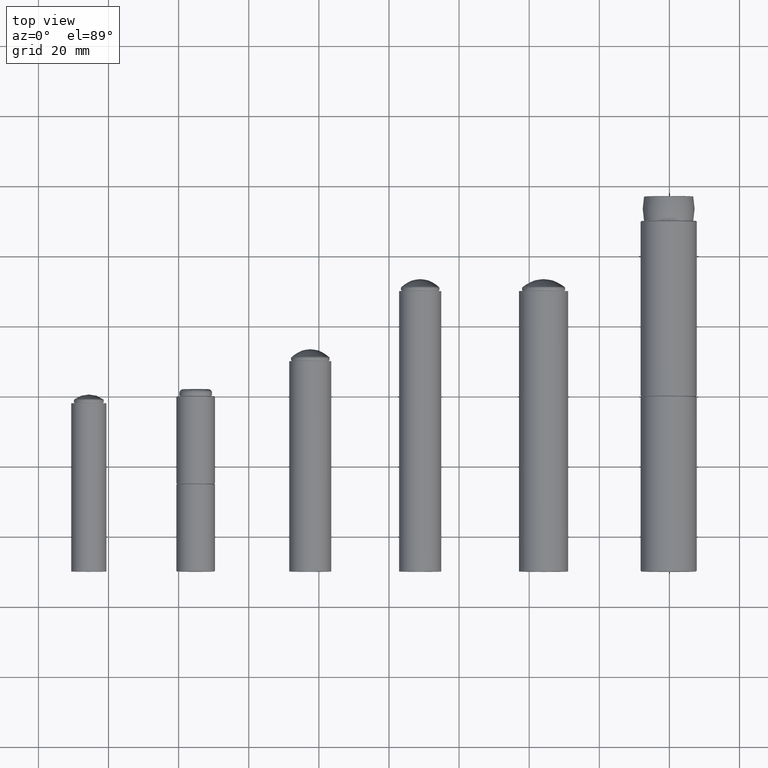
[diagram: clean part render]
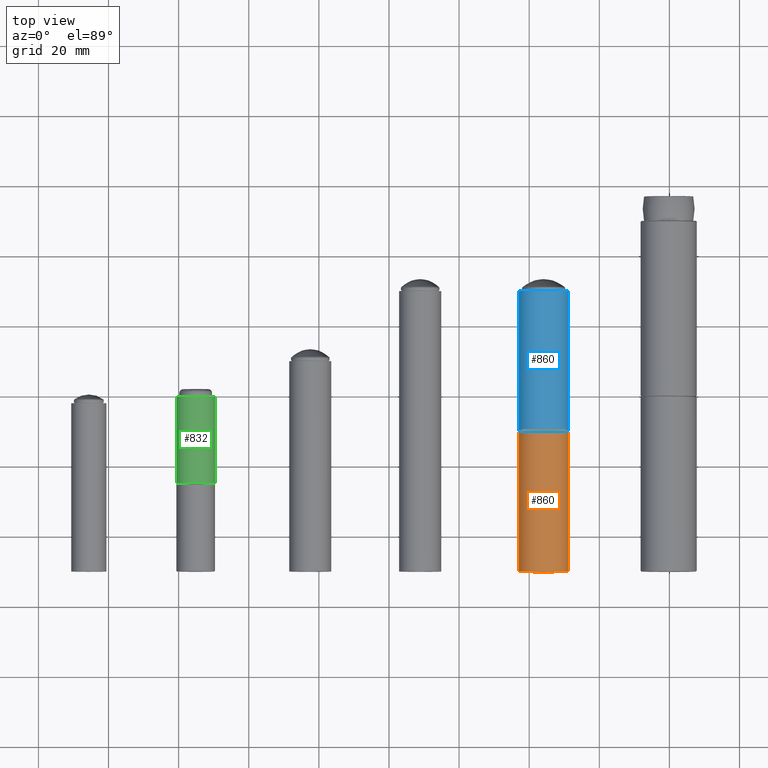
[diagram: same view with three faces highlighted in distinct colors, each labeled with its STEP entity id]
A machine part, top view with three faces highlighted in distinct colors.
Their STEP definitions:

[orange] entity #860 — the highlighted cylindrical surface (bore or boss wall) has radius 7 mm, axis along (-0, 1, 0).
#242=FACE_BOUND('',#417,.T.);
#307=FACE_OUTER_BOUND('',#416,.T.);
#416=EDGE_LOOP('',(#742));
#417=EDGE_LOOP('',(#743));
#501=CIRCLE('',#1012,7.);
#502=CIRCLE('',#1013,7.);
#567=VERTEX_POINT('',#1590);
#568=VERTEX_POINT('',#1592);
#633=EDGE_CURVE('',#567,#567,#501,.T.);
#634=EDGE_CURVE('',#568,#568,#502,.T.);
#742=ORIENTED_EDGE('',*,*,#633,.F.);
#743=ORIENTED_EDGE('',*,*,#634,.F.);
#807=CYLINDRICAL_SURFACE('',#1011,7.);
#860=ADVANCED_FACE('',(#307,#242),#807,.T.);
#1011=AXIS2_PLACEMENT_3D('',#1589,#1305,#1306);
#1012=AXIS2_PLACEMENT_3D('',#1591,#1307,#1308);
#1013=AXIS2_PLACEMENT_3D('',#1593,#1309,#1310);
#1305=DIRECTION('center_axis',(0.,0.,1.));
#1306=DIRECTION('ref_axis',(-1.,0.,0.));
#1307=DIRECTION('center_axis',(0.,0.,1.));
#1308=DIRECTION('ref_axis',(-1.,0.,0.));
#1309=DIRECTION('center_axis',(0.,0.,-1.));
#1310=DIRECTION('ref_axis',(-1.,0.,0.));
#1589=CARTESIAN_POINT('Origin',(0.,0.,0.));
#1590=CARTESIAN_POINT('',(7.,8.57252759403147E-16,40.));
#1591=CARTESIAN_POINT('Origin',(0.,0.,40.));
#1592=CARTESIAN_POINT('',(7.,8.57252759403147E-16,0.));
#1593=CARTESIAN_POINT('Origin',(0.,0.,0.));

[blue] entity #860 — the highlighted cylindrical surface (bore or boss wall) has radius 7 mm, axis along (-0, 1, 0).
#242=FACE_BOUND('',#417,.T.);
#307=FACE_OUTER_BOUND('',#416,.T.);
#416=EDGE_LOOP('',(#742));
#417=EDGE_LOOP('',(#743));
#501=CIRCLE('',#1012,7.);
#502=CIRCLE('',#1013,7.);
#567=VERTEX_POINT('',#1590);
#568=VERTEX_POINT('',#1592);
#633=EDGE_CURVE('',#567,#567,#501,.T.);
#634=EDGE_CURVE('',#568,#568,#502,.T.);
#742=ORIENTED_EDGE('',*,*,#633,.F.);
#743=ORIENTED_EDGE('',*,*,#634,.F.);
#807=CYLINDRICAL_SURFACE('',#1011,7.);
#860=ADVANCED_FACE('',(#307,#242),#807,.T.);
#1011=AXIS2_PLACEMENT_3D('',#1589,#1305,#1306);
#1012=AXIS2_PLACEMENT_3D('',#1591,#1307,#1308);
#1013=AXIS2_PLACEMENT_3D('',#1593,#1309,#1310);
#1305=DIRECTION('center_axis',(0.,0.,1.));
#1306=DIRECTION('ref_axis',(-1.,0.,0.));
#1307=DIRECTION('center_axis',(0.,0.,1.));
#1308=DIRECTION('ref_axis',(-1.,0.,0.));
#1309=DIRECTION('center_axis',(0.,0.,-1.));
#1310=DIRECTION('ref_axis',(-1.,0.,0.));
#1589=CARTESIAN_POINT('Origin',(0.,0.,0.));
#1590=CARTESIAN_POINT('',(7.,8.57252759403147E-16,40.));
#1591=CARTESIAN_POINT('Origin',(0.,0.,40.));
#1592=CARTESIAN_POINT('',(7.,8.57252759403147E-16,0.));
#1593=CARTESIAN_POINT('Origin',(0.,0.,0.));

[green] entity #832 — the highlighted cylindrical surface (bore or boss wall) has radius 5.5 mm, axis along (-0, 1, -0).
#218=FACE_BOUND('',#365,.T.);
#279=FACE_OUTER_BOUND('',#364,.T.);
#364=EDGE_LOOP('',(#690));
#365=EDGE_LOOP('',(#691));
#473=CIRCLE('',#938,5.5);
#475=CIRCLE('',#941,5.5);
#539=VERTEX_POINT('',#1488);
#541=VERTEX_POINT('',#1493);
#605=EDGE_CURVE('',#539,#539,#473,.T.);
#607=EDGE_CURVE('',#541,#541,#475,.T.);
#690=ORIENTED_EDGE('',*,*,#607,.F.);
#691=ORIENTED_EDGE('',*,*,#605,.F.);
#796=CYLINDRICAL_SURFACE('',#940,5.5);
#832=ADVANCED_FACE('',(#279,#218),#796,.T.);
#938=AXIS2_PLACEMENT_3D('',#1489,#1159,#1160);
#940=AXIS2_PLACEMENT_3D('',#1492,#1163,#1164);
#941=AXIS2_PLACEMENT_3D('',#1494,#1165,#1166);
#1159=DIRECTION('center_axis',(0.,0.,-1.));
#1160=DIRECTION('ref_axis',(-1.,0.,0.));
#1163=DIRECTION('center_axis',(0.,0.,1.));
#1164=DIRECTION('ref_axis',(-1.,0.,0.));
#1165=DIRECTION('center_axis',(0.,0.,1.));
#1166=DIRECTION('ref_axis',(-1.,0.,0.));
#1488=CARTESIAN_POINT('',(5.5,-6.73555739531044E-16,0.2));
#1489=CARTESIAN_POINT('Origin',(0.,0.,0.2));
#1492=CARTESIAN_POINT('Origin',(0.,0.,0.));
#1493=CARTESIAN_POINT('',(5.5,6.73555739531044E-16,24.8));
#1494=CARTESIAN_POINT('Origin',(0.,0.,24.8));